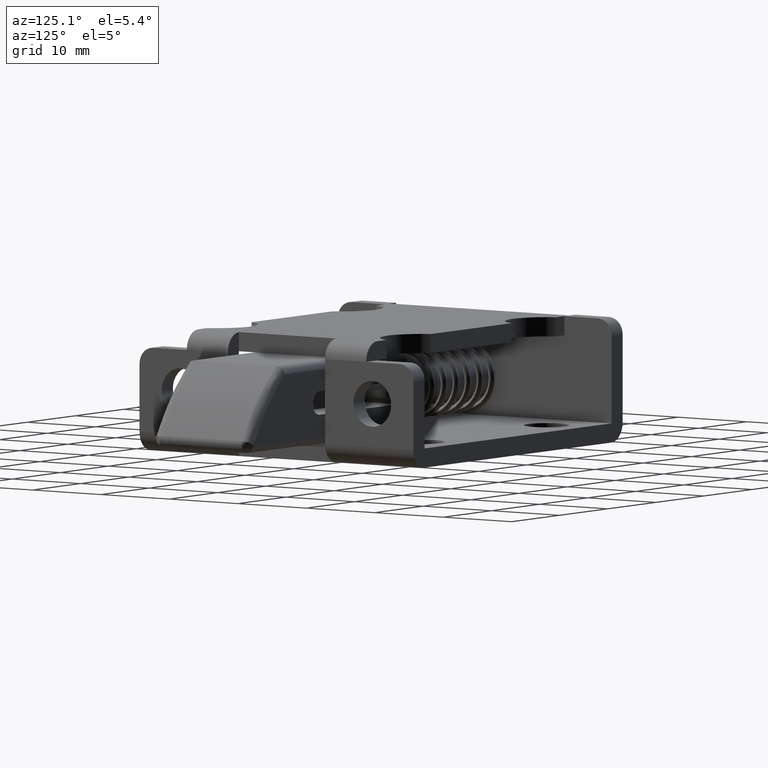
[diagram: clean part render]
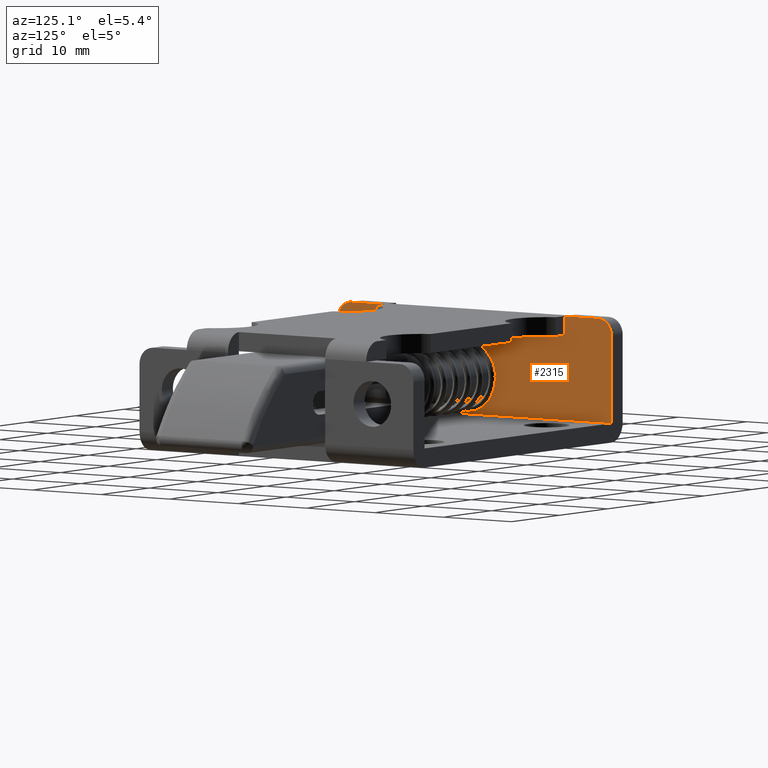
[diagram: same view with one face highlighted and labeled with its STEP entity id]
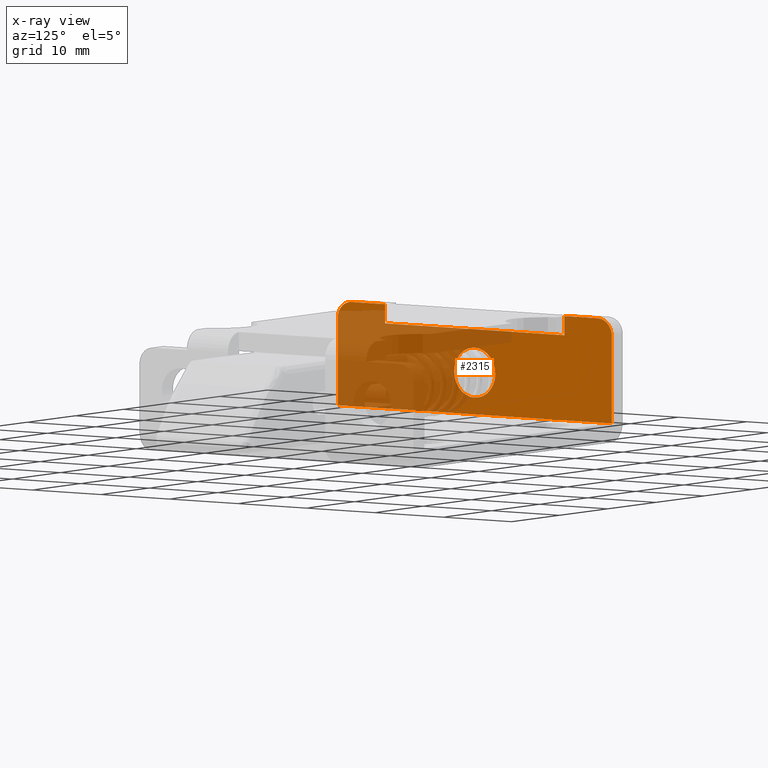
[diagram: x-ray of the same camera — body ghosted, the highlighted face saturated]
A machine part, auxiliary view. The second image highlights one B-rep face of the part: STEP entity #2315.
The next image is the same camera in x-ray: the body ghosted, the highlighted face saturated — about 49% of this face is hidden behind the body in this view.
In plain terms, the highlighted face is a freeform B-spline surface patch.
Its self-contained STEP definition (entity closure, byte-faithful):
#66=CARTESIAN_POINT('',(2.300000000000080,-2.979028579070412,0.354102704143478));
#67=VERTEX_POINT('',#66);
#68=CARTESIAN_POINT('',(2.300000000000080,0.0,-3.0));
#69=VERTEX_POINT('',#68);
#70=CARTESIAN_POINT('',(2.300000000000080,-2.979028579070411,0.354102704143478));
#71=CARTESIAN_POINT('',(2.300000000000080,-3.000000000000000,0.177672359130764));
#72=CARTESIAN_POINT('',(2.300000000000080,-3.0,5.916457E-031));
#73=CARTESIAN_POINT('',(2.300000000000080,-3.0,-3.0));
#74=CARTESIAN_POINT('',(2.300000000000080,0.0,-3.0));
#82=(BOUNDED_CURVE()B_SPLINE_CURVE(2,(#70,#71,#72,#73,#74),.UNSPECIFIED.,.F.,.U.)B_SPLINE_CURVE_WITH_KNOTS((3,2,3),(0.229562473495992,0.250000000000000,0.500000000000000),.UNSPECIFIED.)CURVE()GEOMETRIC_REPRESENTATION_ITEM()RATIONAL_B_SPLINE_CURVE((0.956026754149367,0.976055948310624,1.0,0.707106781186548,1.0))REPRESENTATION_ITEM(''));
#83=EDGE_CURVE('',#67,#69,#82,.T.);
#85=CARTESIAN_POINT('',(2.300000000000080,2.994404395253867,-0.183145618796416));
#86=VERTEX_POINT('',#85);
#87=CARTESIAN_POINT('',(2.300000000000080,0.0,-3.0));
#88=CARTESIAN_POINT('',(2.300000000000080,2.822118200354783,-3.000000000000000));
#89=CARTESIAN_POINT('',(2.300000000000079,2.994404395253867,-0.183145618796416));
#97=(BOUNDED_CURVE()B_SPLINE_CURVE(2,(#87,#88,#89),.UNSPECIFIED.,.F.,.U.)B_SPLINE_CURVE_WITH_KNOTS((3,3),(0.500000000000000,0.739332962219858),.UNSPECIFIED.)CURVE()GEOMETRIC_REPRESENTATION_ITEM()RATIONAL_B_SPLINE_CURVE((1.0,0.719603993309069,0.976072041625815))REPRESENTATION_ITEM(''));
#98=EDGE_CURVE('',#69,#86,#97,.T.);
#165=CARTESIAN_POINT('',(2.300000000000080,0.0,3.0));
#166=VERTEX_POINT('',#165);
#167=CARTESIAN_POINT('',(2.300000000000080,0.0,3.0));
#168=CARTESIAN_POINT('',(2.300000000000079,-2.664523577542087,3.000000000000000));
#169=CARTESIAN_POINT('',(2.300000000000079,-2.979028579070411,0.354102704143478));
#177=(BOUNDED_CURVE()B_SPLINE_CURVE(2,(#167,#168,#169),.UNSPECIFIED.,.F.,.U.)B_SPLINE_CURVE_WITH_KNOTS((3,3),(0.0,0.229562473495992),.UNSPECIFIED.)CURVE()GEOMETRIC_REPRESENTATION_ITEM()RATIONAL_B_SPLINE_CURVE((1.0,0.731050832875924,0.956026754149367))REPRESENTATION_ITEM(''));
#178=EDGE_CURVE('',#166,#67,#177,.T.);
#212=CARTESIAN_POINT('',(2.300000000000079,2.994404395253867,-0.183145618796416));
#213=CARTESIAN_POINT('',(2.300000000000080,3.0,-0.091658290088150));
#214=CARTESIAN_POINT('',(2.300000000000080,3.0,5.916457E-031));
#215=CARTESIAN_POINT('',(2.300000000000080,3.0,3.0));
#216=CARTESIAN_POINT('',(2.300000000000080,0.0,3.0));
#224=(BOUNDED_CURVE()B_SPLINE_CURVE(2,(#212,#213,#214,#215,#216),.UNSPECIFIED.,.F.,.U.)B_SPLINE_CURVE_WITH_KNOTS((3,2,3),(0.739332962219859,0.750000000000000,1.0),.UNSPECIFIED.)CURVE()GEOMETRIC_REPRESENTATION_ITEM()RATIONAL_B_SPLINE_CURVE((0.976072041625817,0.987502787877479,1.0,0.707106781186548,1.0))REPRESENTATION_ITEM(''));
#225=EDGE_CURVE('',#86,#166,#224,.T.);
#1327=CARTESIAN_POINT('',(2.300000000000110,-5.200000000000090,-13.090000000000000));
#1328=VERTEX_POINT('',#1327);
#1386=CARTESIAN_POINT('',(2.300000000000110,-5.200000000000090,13.090000000000000));
#1387=VERTEX_POINT('',#1386);
#1561=CARTESIAN_POINT('',(2.300000000000080,-7.500000000000000,18.0));
#1562=VERTEX_POINT('',#1561);
#1568=CARTESIAN_POINT('',(2.300000000000080,-5.500000000000000,20.0));
#1569=VERTEX_POINT('',#1568);
#1570=CARTESIAN_POINT('',(2.300000000000080,-7.500000000000000,18.0));
#1571=CARTESIAN_POINT('',(2.300000000000080,-7.500000000000000,19.999999999999996));
#1572=CARTESIAN_POINT('',(2.300000000000080,-5.500000000000000,20.0));
#1580=(BOUNDED_CURVE()B_SPLINE_CURVE(2,(#1570,#1571,#1572),.UNSPECIFIED.,.F.,.U.)CURVE()GEOMETRIC_REPRESENTATION_ITEM()QUASI_UNIFORM_CURVE()RATIONAL_B_SPLINE_CURVE((1.0,0.707106781186548,1.0))REPRESENTATION_ITEM(''));
#1581=EDGE_CURVE('',#1562,#1569,#1580,.T.);
#1596=CARTESIAN_POINT('',(2.300000000000110,-7.500000000000000,13.100000000000000));
#1597=VERTEX_POINT('',#1596);
#1612=CARTESIAN_POINT('',(2.300000000000110,-5.200000000000090,13.100000000000000));
#1613=VERTEX_POINT('',#1612);
#1619=CARTESIAN_POINT('',(2.300000000000110,-7.500000000000000,13.100000000000000));
#1620=CARTESIAN_POINT('',(2.300000000000110,-5.200000000000090,13.100000000000000));
#1621=QUASI_UNIFORM_CURVE('',1,(#1619,#1620),.UNSPECIFIED.,.F.,.U.);
#1622=EDGE_CURVE('',#1597,#1613,#1621,.T.);
#1658=CARTESIAN_POINT('',(2.300000000000080,-5.500000000000000,-20.0));
#1659=VERTEX_POINT('',#1658);
#1665=CARTESIAN_POINT('',(2.300000000000080,-7.500000000000000,-18.0));
#1666=VERTEX_POINT('',#1665);
#1667=CARTESIAN_POINT('',(2.300000000000080,-5.500000000000000,-20.0));
#1668=CARTESIAN_POINT('',(2.300000000000080,-7.500000000000000,-19.999999999999996));
#1669=CARTESIAN_POINT('',(2.300000000000080,-7.500000000000000,-18.0));
#1677=(BOUNDED_CURVE()B_SPLINE_CURVE(2,(#1667,#1668,#1669),.UNSPECIFIED.,.F.,.U.)CURVE()GEOMETRIC_REPRESENTATION_ITEM()QUASI_UNIFORM_CURVE()RATIONAL_B_SPLINE_CURVE((1.0,0.707106781186548,1.0))REPRESENTATION_ITEM(''));
#1678=EDGE_CURVE('',#1659,#1666,#1677,.T.);
#1693=CARTESIAN_POINT('',(2.300000000000110,-5.200000000000090,-13.100000000000000));
#1694=VERTEX_POINT('',#1693);
#1709=CARTESIAN_POINT('',(2.300000000000110,-7.500000000000000,-13.100000000000000));
#1710=VERTEX_POINT('',#1709);
#1716=CARTESIAN_POINT('',(2.300000000000110,-5.200000000000090,-13.100000000000000));
#1717=CARTESIAN_POINT('',(2.300000000000110,-7.500000000000000,-13.100000000000000));
#1718=QUASI_UNIFORM_CURVE('',1,(#1716,#1717),.UNSPECIFIED.,.F.,.U.);
#1719=EDGE_CURVE('',#1694,#1710,#1718,.T.);
#2254=CARTESIAN_POINT('',(2.300000000000110,-8.124374975772575,-21.997999922472239));
#2255=CARTESIAN_POINT('',(2.300000000000110,5.624375311048701,-21.997999922472239));
#2256=CARTESIAN_POINT('',(2.300000000000110,-8.124374975772575,21.998000995355849));
#2257=CARTESIAN_POINT('',(2.300000000000110,5.624375311048701,21.998000995355849));
#2258=B_SPLINE_SURFACE_WITH_KNOTS('',1,1,((#2254,#2256),(#2255,#2257)),.UNSPECIFIED.,.F.,.F.,.U.,(2,2),(2,2),(0.0,13.748750286821281),(0.0,43.996000917828077),.UNSPECIFIED.);
#2259=CARTESIAN_POINT('',(2.300000000000110,5.0,20.0));
#2260=VERTEX_POINT('',#2259);
#2261=CARTESIAN_POINT('',(2.300000000000080,-5.500000000000000,20.0));
#2262=CARTESIAN_POINT('',(2.300000000000110,5.0,20.0));
#2263=QUASI_UNIFORM_CURVE('',1,(#2261,#2262),.UNSPECIFIED.,.F.,.U.);
#2264=EDGE_CURVE('',#1569,#2260,#2263,.T.);
#2265=ORIENTED_EDGE('',*,*,#2264,.F.);
#2266=ORIENTED_EDGE('',*,*,#1581,.F.);
#2267=CARTESIAN_POINT('',(2.300000000000080,-7.500000000000000,18.0));
#2268=CARTESIAN_POINT('',(2.300000000000110,-7.500000000000000,13.100000000000000));
#2269=QUASI_UNIFORM_CURVE('',1,(#2267,#2268),.UNSPECIFIED.,.F.,.U.);
#2270=EDGE_CURVE('',#1562,#1597,#2269,.T.);
#2271=ORIENTED_EDGE('',*,*,#2270,.T.);
#2272=ORIENTED_EDGE('',*,*,#1622,.T.);
#2273=CARTESIAN_POINT('',(2.300000000000110,-5.200000000000090,13.100000000000000));
#2274=CARTESIAN_POINT('',(2.300000000000110,-5.200000000000090,13.090000000000000));
#2275=QUASI_UNIFORM_CURVE('',1,(#2273,#2274),.UNSPECIFIED.,.F.,.U.);
#2276=EDGE_CURVE('',#1613,#1387,#2275,.T.);
#2277=ORIENTED_EDGE('',*,*,#2276,.T.);
#2278=CARTESIAN_POINT('',(2.300000000000110,-5.200000000000090,-13.090000000000000));
#2279=CARTESIAN_POINT('',(2.300000000000110,-5.200000000000090,13.090000000000000));
#2280=QUASI_UNIFORM_CURVE('',1,(#2278,#2279),.UNSPECIFIED.,.F.,.U.);
#2281=EDGE_CURVE('',#1328,#1387,#2280,.T.);
#2282=ORIENTED_EDGE('',*,*,#2281,.F.);
#2283=CARTESIAN_POINT('',(2.300000000000110,-5.200000000000090,-13.100000000000000));
#2284=CARTESIAN_POINT('',(2.300000000000110,-5.200000000000090,-13.090000000000000));
#2285=QUASI_UNIFORM_CURVE('',1,(#2283,#2284),.UNSPECIFIED.,.F.,.U.);
#2286=EDGE_CURVE('',#1694,#1328,#2285,.T.);
#2287=ORIENTED_EDGE('',*,*,#2286,.F.);
#2288=ORIENTED_EDGE('',*,*,#1719,.T.);
#2289=CARTESIAN_POINT('',(2.300000000000110,-7.500000000000000,-13.100000000000000));
#2290=CARTESIAN_POINT('',(2.300000000000080,-7.500000000000000,-18.0));
#2291=QUASI_UNIFORM_CURVE('',1,(#2289,#2290),.UNSPECIFIED.,.F.,.U.);
#2292=EDGE_CURVE('',#1710,#1666,#2291,.T.);
#2293=ORIENTED_EDGE('',*,*,#2292,.T.);
#2294=ORIENTED_EDGE('',*,*,#1678,.F.);
#2295=CARTESIAN_POINT('',(2.300000000000110,5.0,-20.0));
#2296=VERTEX_POINT('',#2295);
#2297=CARTESIAN_POINT('',(2.300000000000080,-5.500000000000000,-20.0));
#2298=CARTESIAN_POINT('',(2.300000000000110,5.0,-20.0));
#2299=QUASI_UNIFORM_CURVE('',1,(#2297,#2298),.UNSPECIFIED.,.F.,.U.);
#2300=EDGE_CURVE('',#1659,#2296,#2299,.T.);
#2301=ORIENTED_EDGE('',*,*,#2300,.T.);
#2302=CARTESIAN_POINT('',(2.300000000000110,5.0,-20.0));
#2303=CARTESIAN_POINT('',(2.300000000000110,5.0,20.0));
#2304=QUASI_UNIFORM_CURVE('',1,(#2302,#2303),.UNSPECIFIED.,.F.,.U.);
#2305=EDGE_CURVE('',#2296,#2260,#2304,.T.);
#2306=ORIENTED_EDGE('',*,*,#2305,.T.);
#2307=EDGE_LOOP('',(#2265,#2266,#2271,#2272,#2277,#2282,#2287,#2288,#2293,#2294,#2301,#2306));
#2308=FACE_OUTER_BOUND('',#2307,.T.);
#2309=ORIENTED_EDGE('',*,*,#98,.F.);
#2310=ORIENTED_EDGE('',*,*,#83,.F.);
#2311=ORIENTED_EDGE('',*,*,#178,.F.);
#2312=ORIENTED_EDGE('',*,*,#225,.F.);
#2313=EDGE_LOOP('',(#2309,#2310,#2311,#2312));
#2314=FACE_BOUND('',#2313,.T.);
#2315=ADVANCED_FACE('',(#2308,#2314),#2258,.T.);